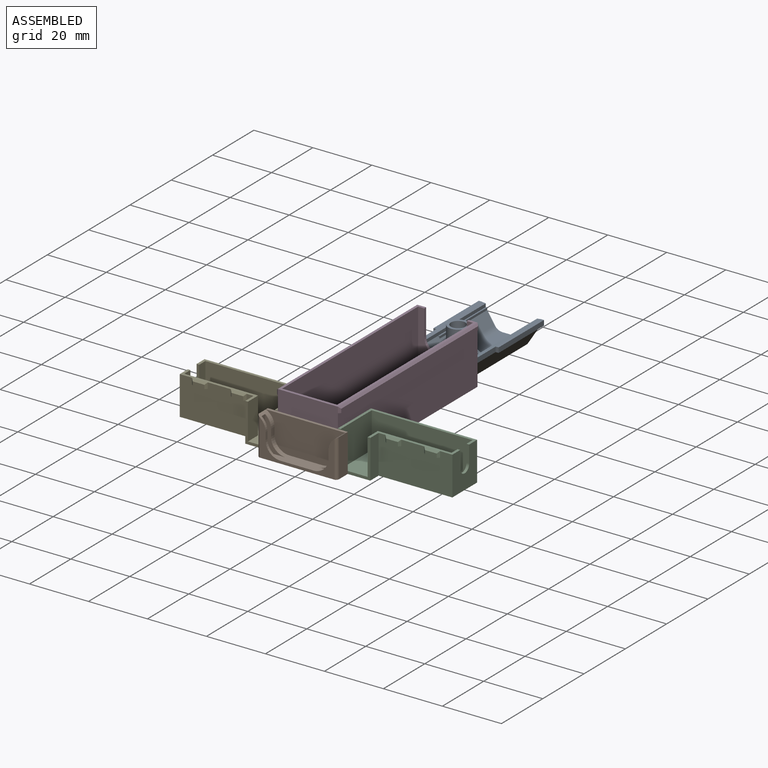
[diagram: assembled view]
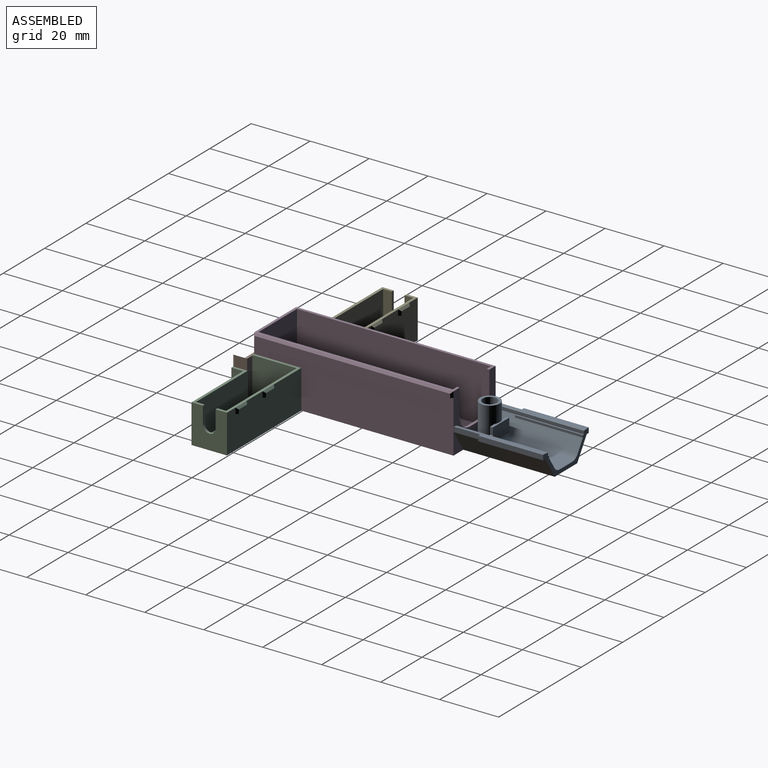
[diagram: assembled view, second angle]
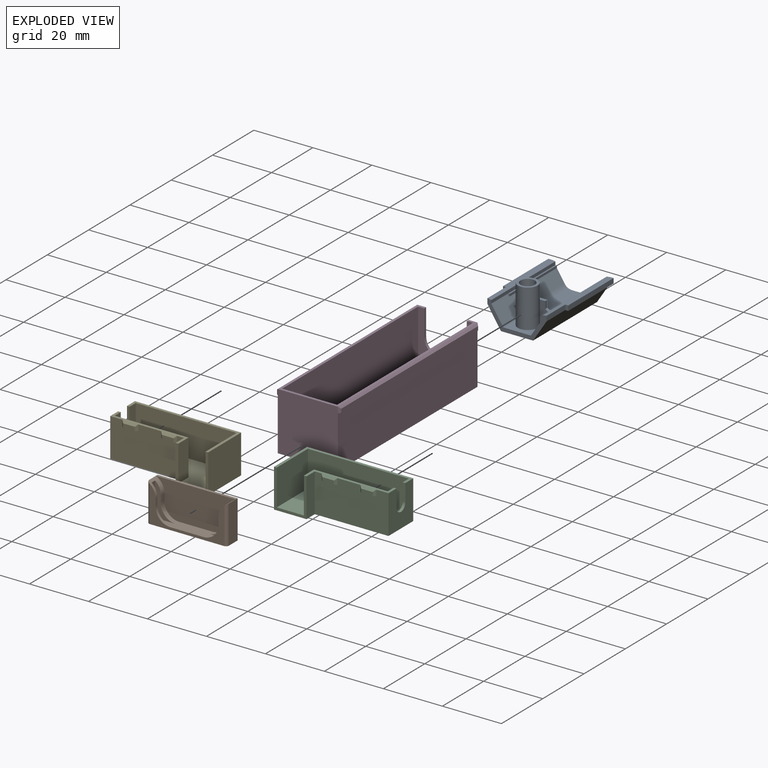
[diagram: exploded view]
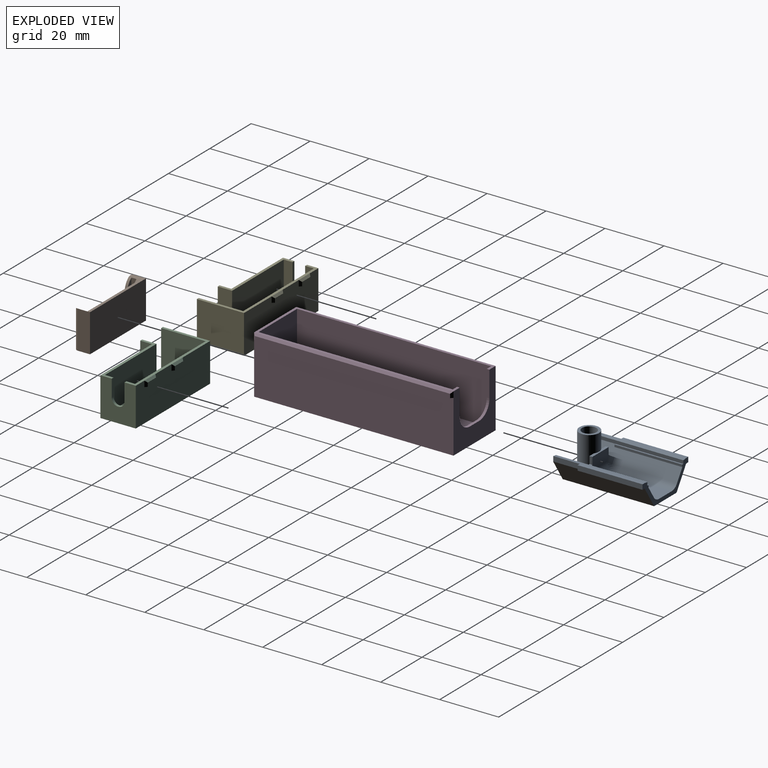
[diagram: exploded view, second angle]
ASSEMBLY  parts=5 mates=4
PART A: 47 faces, bbox 22.1x31x14.4 mm
  f0: plane 7.3x4.88mm, normal (0,1,0), area 23.4mm2, adj f11,f32,f33,f34,f43,f45
  f1: plane 7.3x4.88mm, normal (0,1,0), area 23.4mm2, adj f9,f30,f31,f33,f43,f45
  f2: plane 0.77x0.5mm, normal (0,1,0), area 0.2mm2, adj f11,f12,f13
  f3: plane 0.77x0.5mm, normal (0,1,0), area 0.2mm2, adj f7,f8,f9
  f4: plane 1.69x1mm, normal (0,1,0), area 1.7mm2, adj f16,f17,f18,f28
  f5: plane 31x1.35mm, normal (-0.14,0,0.99), area 42.3mm2, adj f6,f24,f26,f29,f42
  f6: plane 31x1.1mm, normal (-1,0,0), area 34.1mm2, adj f5,f7,f9,f26,f42
  f7: plane 23x0.5mm, normal (0,0,1), area 11.5mm2, adj f3,f6,f8,f26
  f8: plane 23x0.77mm, normal (-1,0,0), area 17.8mm2, adj f3,f7,f9,f26
  f9: plane 31x6.2mm, normal (-0.84,0,0.54), area 161.8mm2, adj f1,f3,f6,f8,f26,f30,f39,f41
  f10: plane 19x6.13mm, normal (0,0,1), area 116.4mm2, adj f26,f35,f38,f41
  f11: plane 31x6.2mm, normal (0.84,0,0.54), area 161.8mm2, adj f0,f2,f12,f14,f26,f32,f35,f36
  f12: plane 23x0.77mm, normal (1,0,0), area 17.8mm2, adj f2,f11,f13,f26
  f13: plane 23x0.5mm, normal (0,0,1), area 11.5mm2, adj f2,f12,f14,f26
  f14: plane 31x1.1mm, normal (1,0,0), area 34.1mm2, adj f11,f13,f15,f26,f42
  f15: plane 31x1.35mm, normal (0.14,0,0.99), area 42.3mm2, adj f14,f16,f26,f28,f42
  f16: plane 22x1mm, normal (0,0,1), area 22mm2, adj f4,f15,f17,f26
  f17: plane 22x1.69mm, normal (-1,0,0), area 37.2mm2, adj f4,f16,f18,f26
  f18: plane 22x1mm, normal (0,0,-1), area 22mm2, adj f4,f17,f19,f26
  f19: plane 31x7.15mm, normal (-0.84,0,-0.54), area 263.9mm2, adj f18,f20,f26,f28,f42
  f20: plane 31x10.86mm, normal (0,0,-1), area 317.9mm2, adj f19,f21,f26,f42,f44
  f21: plane 31x7.15mm, normal (0.84,0,-0.54), area 263.9mm2, adj f20,f22,f26,f29,f42
  f22: plane 22x1mm, normal (0,0,-1), area 22mm2, adj f21,f23,f25,f26
  f23: plane 22x1.69mm, normal (1,0,0), area 37.2mm2, adj f22,f24,f25,f26
  f24: plane 22x1mm, normal (0,0,1), area 22mm2, adj f5,f23,f25,f26
  f25: plane 1.69x1mm, normal (0,1,0), area 1.7mm2, adj f22,f23,f24,f29
  f26: plane 22.1x8.84mm, normal (0,-1,0), area 43.5mm2, adj f5,f6,f7,f8,f9,f10,f11,f12
  f27: plane 8.36x4.3mm, normal (0,-1,0), area 32.9mm2, adj f30,f31,f32,f33,f34,f36,f38,f39
  f28: plane 9x1.69mm, normal (-1,0,0), area 15.2mm2, adj f4,f15,f19,f42
  f29: plane 9x1.69mm, normal (1,0,0), area 15.2mm2, adj f5,f21,f25,f42
  f30: plane 4x2.75mm, normal (0.54,0,0.84), area 5.2mm2, adj f1,f9,f27,f31,f39
  f31: plane 2.43x1mm, normal (1,0,0), area 2.4mm2, adj f1,f27,f30,f33
  f32: plane 4x2.75mm, normal (-0.54,0,0.84), area 5.2mm2, adj f0,f11,f27,f34,f36
  f33: plane 7.9x1mm, normal (0,0,1), area 6.6mm2, adj f0,f1,f27,f31,f34,f45
  f34: plane 2.43x1mm, normal (-1,0,0), area 2.4mm2, adj f0,f27,f32,f33
  f35: cylinder r=3mm len=19mm, axis (0,-1,0), area 56.9mm2, adj f10,f11,f26,f37
  f36: cylinder r=3mm len=3.64mm, axis (0.54,0,-0.84), area 9.7mm2, adj f11,f27,f32,f37
  f37: sphere r=3mm, area 9mm2, adj f35,f36,f38
  f38: cylinder r=3mm len=6.13mm, axis (1,0,0), area 28.9mm2, adj f10,f27,f37,f40
  f39: cylinder r=3mm len=3.64mm, axis (0.54,0,0.84), area 9.7mm2, adj f9,f27,f30,f40
  f40: sphere r=3mm, area 9mm2, adj f38,f39,f41
  f41: cylinder r=3mm len=19mm, axis (0,1,0), area 56.9mm2, adj f9,f10,f26,f40
  f42: plane 20.1x8.84mm, normal (0,1,0), area 38.9mm2, adj f5,f6,f9,f11,f14,f15,f19,f20
  f43: plane 9.39x8mm, normal (0,0,1), area 41.2mm2, adj f0,f1,f9,f11,f42,f45
  f44: cylinder r=2.45mm len=14.35mm, axis (0,0,1), area 220.9mm2, adj f20,f46
  f45: cylinder r=3.35mm len=13mm, axis (0,0,-1), area 245.6mm2, adj f0,f1,f33,f43,f46
  f46: plane 6.7x6.7mm, normal (0,0,1), area 16.4mm2, adj f44,f45
PART B: 26 faces, bbox 27.1x5.2x12.9 mm
  f0: plane 11.46x7mm, normal (0,-1,0), area 25.9mm2, adj f1,f14,f16,f18,f23
  f1: plane 11.46x1.7mm, normal (-1,0,0), area 19.5mm2, adj f0,f2,f16,f23
  f2: plane 11.46x7mm, normal (0,1,0), area 25.9mm2, adj f1,f3,f16,f21,f23
  f3: plane 2.46x0.9mm, normal (-1,0,0), area 2.2mm2, adj f2,f7,f21,f23
  f4: plane 12.9x4.2mm, normal (1,0,0), area 54.2mm2, adj f5,f15,f17,f23,f24
  f5: plane 27.1x12.9mm, normal (0,1,0), area 349.6mm2, adj f4,f6,f15,f17
  f6: plane 12.9x4.2mm, normal (-1,0,0), area 54.2mm2, adj f5,f15,f17,f22,f25
  f7: plane 25.1x12.29mm, normal (0,-1,0), area 72.1mm2, adj f3,f8,f16,f17,f20,f21,f22,f23
  f8: plane 2.46x0.9mm, normal (1,0,0), area 2.2mm2, adj f7,f9,f20,f22
  f9: plane 11.46x7mm, normal (0,1,0), area 25.9mm2, adj f8,f10,f16,f20,f22
  f10: plane 11.46x1.7mm, normal (1,0,0), area 19.5mm2, adj f9,f11,f16,f22
  f11: plane 11.46x7mm, normal (0,-1,0), area 25.9mm2, adj f10,f12,f16,f19,f22
  f12: plane 2.46x1.7mm, normal (1,0,0), area 4.2mm2, adj f11,f13,f19,f22
  f13: plane 27.1x12mm, normal (0,-1,0), area 252.3mm2, adj f12,f14,f15,f16,f18,f19,f22,f23
  f14: plane 2.46x1.7mm, normal (-1,0,0), area 4.2mm2, adj f0,f13,f18,f23
  f15: plane 27.1x0.9mm, normal (0,0,1), area 24.4mm2, adj f4,f5,f6,f13
  f16: plane 25.3x4.3mm, normal (0,0,1), area 72.4mm2, adj f0,f1,f2,f7,f9,f10,f11,f13
  f17: plane 27.1x5.2mm, normal (0,0,-1), area 140.5mm2, adj f4,f5,f6,f7,f24,f25
  f18: cylinder r=5mm len=5mm, axis (0,-1,0), area 13.4mm2, adj f0,f13,f14,f16
  f19: cylinder r=5mm len=5mm, axis (0,1,0), area 13.4mm2, adj f11,f12,f13,f16
  f20: cylinder r=5mm len=5mm, axis (0,1,0), area 7.1mm2, adj f7,f8,f9,f16
  f21: cylinder r=5mm len=5mm, axis (0,-1,0), area 7.1mm2, adj f2,f3,f7,f16
  f22: cylinder r=5mm len=4.54mm, axis (0,-1,0), area 16.3mm2, adj f6,f7,f8,f9,f10,f11,f12,f13
  f23: cylinder r=5mm len=4.54mm, axis (0,-1,0), area 16.3mm2, adj f0,f1,f2,f3,f4,f7,f13,f14
  f24: cylinder r=1mm len=12.9mm, axis (0,0,1), area 19.9mm2, adj f4,f7,f17,f23
  f25: cylinder r=1mm len=12.9mm, axis (0,0,-1), area 19.9mm2, adj f6,f7,f17,f22
PART C: 38 faces, bbox 36x16.7x13.1 mm
  f0: plane 25.9x7.85mm, normal (0,0,1), area 29.6mm2, adj f1,f2,f3,f5,f6,f10,f11,f33
  f1: plane 13.1x12mm, normal (1,0,0), area 124.8mm2, adj f0,f6,f7,f8,f14,f35,f36,f37
  f2: plane 12.2x10.2mm, normal (-1,0,0), area 92mm2, adj f0,f11,f12,f13,f14,f35,f36,f37
  f3: plane 13.1x11mm, normal (0,-1,0), area 31.9mm2, adj f0,f4,f5,f8,f9,f10,f13,f14
  f4: plane 16x13.1mm, normal (-1,0,0), area 209.6mm2, adj f3,f7,f8,f14
  f5: plane 13.1x4mm, normal (1,0,0), area 52.4mm2, adj f0,f3,f6,f8
  f6: plane 25x13.1mm, normal (0,-1,0), area 306.1mm2, adj f0,f1,f5,f8,f23,f25,f26,f27
  f7: plane 36x13.1mm, normal (0,1,0), area 450.2mm2, adj f1,f4,f8,f14,f15,f16,f18,f19
  f8: plane 36x16mm, normal (0,0,-1), area 476mm2, adj f1,f3,f4,f5,f6,f7
  f9: plane 15.1x12.2mm, normal (1,0,0), area 184.2mm2, adj f3,f12,f13,f14
  f10: plane 12.2x4.9mm, normal (-1,0,0), area 59.8mm2, adj f0,f3,f11,f13
  f11: plane 25x12.2mm, normal (0,1,0), area 305mm2, adj f0,f2,f10,f13
  f12: plane 34.2x12.2mm, normal (0,-1,0), area 417.2mm2, adj f2,f9,f13,f14
  f13: plane 34.2x15.1mm, normal (0,0,1), area 393.9mm2, adj f2,f3,f9,f10,f11,f12
  f14: plane 36x16mm, normal (0,0,1), area 48.6mm2, adj f1,f2,f3,f4,f7,f9,f12,f31
  f15: plane 2x0.68mm, normal (-0.71,0.71,0), area 1.6mm2, adj f7,f17,f18,f31
  f16: plane 2x0.68mm, normal (0.71,0.71,0), area 1.6mm2, adj f7,f17,f18,f31
  f17: plane 4x1.33mm, normal (0,1,0), area 5.3mm2, adj f15,f16,f18,f31
  f18: plane 5.35x0.68mm, normal (0,0,-1), area 3.2mm2, adj f7,f15,f16,f17
  f19: plane 2x0.68mm, normal (0.71,0.71,0), area 1.6mm2, adj f7,f20,f22,f32
  f20: plane 4x1.33mm, normal (0,1,0), area 5.3mm2, adj f19,f21,f22,f32
  f21: plane 2x0.68mm, normal (-0.71,0.71,0), area 1.6mm2, adj f7,f20,f22,f32
  f22: plane 5.35x0.68mm, normal (0,0,-1), area 3.2mm2, adj f7,f19,f20,f21
  f23: plane 2x0.68mm, normal (-0.71,-0.71,0), area 1.6mm2, adj f6,f24,f26,f33
  f24: plane 4x1.33mm, normal (0,-1,0), area 5.3mm2, adj f23,f25,f26,f33
  f25: plane 2x0.68mm, normal (0.71,-0.71,0), area 1.6mm2, adj f6,f24,f26,f33
  f26: plane 5.35x0.68mm, normal (0,0,-1), area 3.2mm2, adj f6,f23,f24,f25
  f27: plane 2x0.68mm, normal (-0.71,-0.71,0), area 1.6mm2, adj f6,f28,f30,f34
  f28: plane 4x1.33mm, normal (0,-1,0), area 5.3mm2, adj f27,f29,f30,f34
  f29: plane 2x0.68mm, normal (0.71,-0.71,0), area 1.6mm2, adj f6,f28,f30,f34
  f30: plane 5.35x0.68mm, normal (0,0,-1), area 3.2mm2, adj f6,f27,f28,f29
  f31: plane 5.35x0.68mm, normal (0,0.71,0.71), area 4.5mm2, adj f14,f15,f16,f17
  f32: plane 5.35x0.68mm, normal (0,0.71,0.71), area 4.5mm2, adj f14,f19,f20,f21
  f33: plane 5.35x0.68mm, normal (0,-0.71,0.71), area 4.5mm2, adj f0,f23,f24,f25
  f34: plane 5.35x0.68mm, normal (0,-0.71,0.71), area 4.5mm2, adj f0,f27,f28,f29
  f35: cylinder r=2.15mm len=4.3mm, axis (1,0,0), area 6.1mm2, adj f1,f2,f36,f37
  f36: plane 5.85x0.9mm, normal (0,1,0), area 5.3mm2, adj f0,f1,f2,f35
  f37: plane 5.85x0.9mm, normal (0,-1,0), area 5.3mm2, adj f1,f2,f14,f35
PART D: 26 faces, bbox 21.8x67.6x19.7 mm
  f0: plane 67.6x17.7mm, normal (-1,0,0), area 1196.5mm2, adj f3,f5,f6,f23
  f1: plane 67.6x17.7mm, normal (1,0,0), area 1196.5mm2, adj f3,f5,f6,f19
  f2: plane 67.6x20.4mm, normal (0,0,1), area 142.2mm2, adj f3,f4,f5,f7,f8,f9,f12,f13
  f3: plane 20.4x19.7mm, normal (0,1,0), area 213.9mm2, adj f0,f1,f2,f6,f11,f12,f13,f14
  f4: plane 18.8x18.6mm, normal (0,-1,0), area 161.7mm2, adj f2,f7,f9,f10,f11,f12,f13,f14
  f5: plane 20.4x19.7mm, normal (0,-1,0), area 401.9mm2, adj f0,f1,f2,f6,f17,f21
  f6: plane 67.6x20.4mm, normal (0,0,-1), area 1379mm2, adj f0,f1,f3,f5
  f7: plane 65.8x18.8mm, normal (1,0,0), area 1237mm2, adj f2,f4,f8,f10
  f8: plane 18.8x18.6mm, normal (0,1,0), area 349.7mm2, adj f2,f7,f9,f10
  f9: plane 65.8x18.8mm, normal (-1,0,0), area 1237mm2, adj f2,f4,f8,f10
  f10: plane 65.8x18.6mm, normal (0,0,1), area 1223.9mm2, adj f4,f7,f8,f9
  f11: plane 4.4x0.9mm, normal (0,0,1), area 4mm2, adj f3,f4,f14,f15
  f12: plane 8.8x0.9mm, normal (1,0,0), area 7.9mm2, adj f2,f3,f4,f15
  f13: plane 8.8x0.9mm, normal (-1,0,0), area 7.9mm2, adj f2,f3,f4,f14
  f14: cylinder r=5mm len=5mm, axis (0,-1,0), area 7.1mm2, adj f3,f4,f11,f13
  f15: cylinder r=5mm len=5mm, axis (0,1,0), area 7.1mm2, adj f3,f4,f11,f12
  f16: plane 2x0.68mm, normal (0.71,0.71,0), area 1.6mm2, adj f3,f18,f19,f24
  f17: plane 2x0.68mm, normal (0.71,-0.71,0), area 1.6mm2, adj f5,f18,f19,f24
  f18: plane 66.25x1.33mm, normal (1,0,0), area 87.8mm2, adj f16,f17,f19,f24
  f19: plane 67.6x0.68mm, normal (0,0,-1), area 45.2mm2, adj f1,f16,f17,f18
  f20: plane 66.25x1.33mm, normal (-1,0,0), area 87.8mm2, adj f21,f22,f23,f25
  f21: plane 2x0.68mm, normal (-0.71,-0.71,0), area 1.6mm2, adj f5,f20,f23,f25
  f22: plane 2x0.68mm, normal (-0.71,0.71,0), area 1.6mm2, adj f3,f20,f23,f25
  f23: plane 67.6x0.68mm, normal (0,0,-1), area 45.2mm2, adj f0,f20,f21,f22
  f24: plane 67.6x0.68mm, normal (0.71,0,0.71), area 63.9mm2, adj f2,f16,f17,f18
  f25: plane 67.6x0.68mm, normal (-0.71,0,0.71), area 63.9mm2, adj f2,f20,f21,f22
PART E: 38 faces, bbox 36x16.7x13.1 mm
  f0: plane 25.9x7.85mm, normal (0,0,1), area 29.6mm2, adj f1,f2,f3,f5,f6,f10,f11,f33
  f1: plane 13.1x12mm, normal (-1,0,0), area 124.8mm2, adj f0,f6,f7,f8,f14,f35,f36,f37
  f2: plane 12.2x10.2mm, normal (1,0,0), area 92mm2, adj f0,f11,f12,f13,f14,f35,f36,f37
  f3: plane 13.1x11mm, normal (0,-1,0), area 31.9mm2, adj f0,f4,f5,f8,f9,f10,f13,f14
  f4: plane 16x13.1mm, normal (1,0,0), area 209.6mm2, adj f3,f7,f8,f14
  f5: plane 13.1x4mm, normal (-1,0,0), area 52.4mm2, adj f0,f3,f6,f8
  f6: plane 25x13.1mm, normal (0,-1,0), area 306.1mm2, adj f0,f1,f5,f8,f23,f25,f26,f27
  f7: plane 36x13.1mm, normal (0,1,0), area 450.2mm2, adj f1,f4,f8,f14,f15,f16,f18,f19
  f8: plane 36x16mm, normal (0,0,-1), area 476mm2, adj f1,f3,f4,f5,f6,f7
  f9: plane 15.1x12.2mm, normal (-1,0,0), area 184.2mm2, adj f3,f12,f13,f14
  f10: plane 12.2x4.9mm, normal (1,0,0), area 59.8mm2, adj f0,f3,f11,f13
  f11: plane 25x12.2mm, normal (0,1,0), area 305mm2, adj f0,f2,f10,f13
  f12: plane 34.2x12.2mm, normal (0,-1,0), area 417.2mm2, adj f2,f9,f13,f14
  f13: plane 34.2x15.1mm, normal (0,0,1), area 393.9mm2, adj f2,f3,f9,f10,f11,f12
  f14: plane 36x16mm, normal (0,0,1), area 48.6mm2, adj f1,f2,f3,f4,f7,f9,f12,f31
  f15: plane 2x0.68mm, normal (0.71,0.71,0), area 1.6mm2, adj f7,f17,f18,f31
  f16: plane 2x0.68mm, normal (-0.71,0.71,0), area 1.6mm2, adj f7,f17,f18,f31
  f17: plane 4x1.33mm, normal (0,1,0), area 5.3mm2, adj f15,f16,f18,f31
  f18: plane 5.35x0.68mm, normal (0,0,-1), area 3.2mm2, adj f7,f15,f16,f17
  f19: plane 2x0.68mm, normal (-0.71,0.71,0), area 1.6mm2, adj f7,f20,f22,f32
  f20: plane 4x1.33mm, normal (0,1,0), area 5.3mm2, adj f19,f21,f22,f32
  f21: plane 2x0.68mm, normal (0.71,0.71,0), area 1.6mm2, adj f7,f20,f22,f32
  f22: plane 5.35x0.68mm, normal (0,0,-1), area 3.2mm2, adj f7,f19,f20,f21
  f23: plane 2x0.68mm, normal (0.71,-0.71,0), area 1.6mm2, adj f6,f24,f26,f33
  f24: plane 4x1.33mm, normal (0,-1,0), area 5.3mm2, adj f23,f25,f26,f33
  f25: plane 2x0.68mm, normal (-0.71,-0.71,0), area 1.6mm2, adj f6,f24,f26,f33
  f26: plane 5.35x0.68mm, normal (0,0,-1), area 3.2mm2, adj f6,f23,f24,f25
  f27: plane 2x0.68mm, normal (0.71,-0.71,0), area 1.6mm2, adj f6,f28,f30,f34
  f28: plane 4x1.33mm, normal (0,-1,0), area 5.3mm2, adj f27,f29,f30,f34
  f29: plane 2x0.68mm, normal (-0.71,-0.71,0), area 1.6mm2, adj f6,f28,f30,f34
  f30: plane 5.35x0.68mm, normal (0,0,-1), area 3.2mm2, adj f6,f27,f28,f29
  f31: plane 5.35x0.68mm, normal (0,0.71,0.71), area 4.5mm2, adj f14,f15,f16,f17
  f32: plane 5.35x0.68mm, normal (0,0.71,0.71), area 4.5mm2, adj f14,f19,f20,f21
  f33: plane 5.35x0.68mm, normal (0,-0.71,0.71), area 4.5mm2, adj f0,f23,f24,f25
  f34: plane 5.35x0.68mm, normal (0,-0.71,0.71), area 4.5mm2, adj f0,f27,f28,f29
  f35: cylinder r=2.15mm len=4.3mm, axis (-1,0,0), area 6.1mm2, adj f1,f2,f36,f37
  f36: plane 5.85x0.9mm, normal (0,1,0), area 5.3mm2, adj f0,f1,f2,f35
  f37: plane 5.85x0.9mm, normal (0,-1,0), area 5.3mm2, adj f1,f2,f14,f35
PLACE A rot(axis=(0,0,1),180deg) t=(0,64.8,8.1)mm
PLACE B t=(-27.1,-33.8,0.9)mm
PLACE C t=(5.2,-7.8,0)mm
PLACE D at identity
PLACE E t=(-5.2,-7.8,0)mm
MATE fastened A.f42 <-> D.f3  axis (0,-1,0) through (0,33.8,0)mm
MATE fastened B.f5 <-> D.f5  axis (0,1,0) through (0,-33.8,0)mm
MATE fastened E.f3 <-> D.f5  axis (0,-1,0) through (-10.2,-33.8,0)mm
MATE fastened C.f3 <-> D.f5  axis (0,-1,0) through (10.2,-33.8,0)mm
